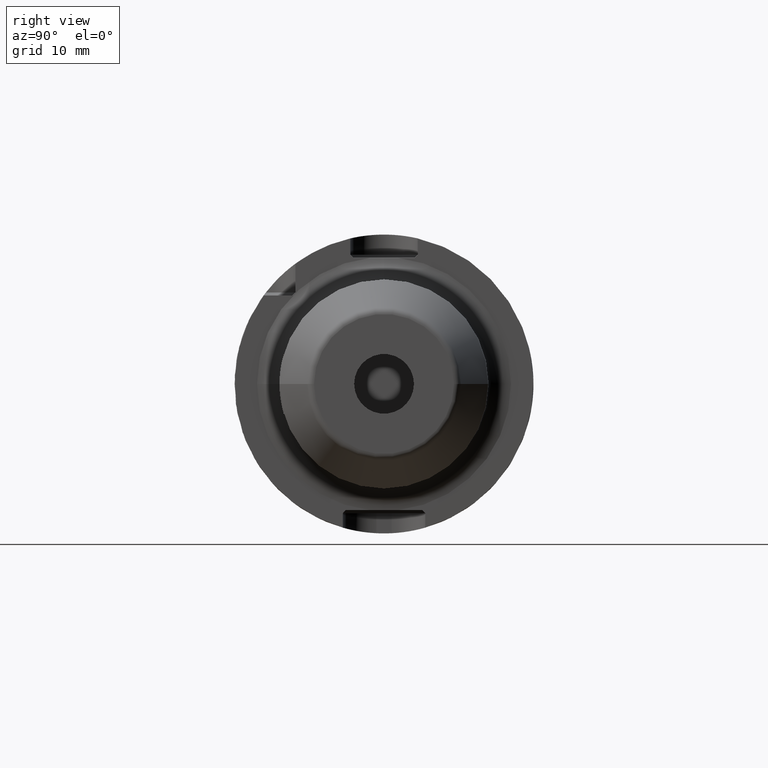
[diagram: clean part render]
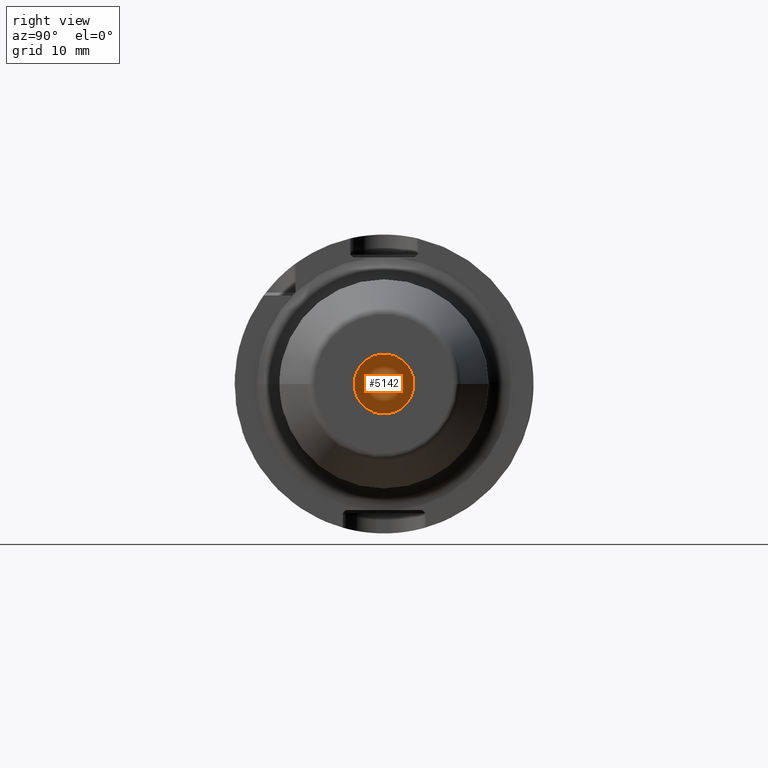
[diagram: same view with one face highlighted and labeled with its STEP entity id]
A machine part, right view. The second image highlights one B-rep face of the part: STEP entity #5142.
In plain terms, the highlighted planar face has unit normal (1, 0, 0).
Its self-contained STEP definition (entity closure, byte-faithful):
#1726=CARTESIAN_POINT('',(2.1E1,0.E0,0.E0));
#1727=DIRECTION('',(-1.E0,0.E0,0.E0));
#1728=DIRECTION('',(0.E0,1.E0,0.E0));
#1729=AXIS2_PLACEMENT_3D('',#1726,#1727,#1728);
#1731=CARTESIAN_POINT('',(2.1E1,0.E0,0.E0));
#1732=DIRECTION('',(1.E0,0.E0,0.E0));
#1733=DIRECTION('',(0.E0,1.E0,0.E0));
#1734=AXIS2_PLACEMENT_3D('',#1731,#1732,#1733);
#3329=CARTESIAN_POINT('',(2.1E1,4.E0,0.E0));
#3330=CARTESIAN_POINT('',(2.1E1,-4.E0,0.E0));
#3331=VERTEX_POINT('',#3329);
#3332=VERTEX_POINT('',#3330);
#5133=CARTESIAN_POINT('',(2.1E1,0.E0,0.E0));
#5134=DIRECTION('',(1.E0,0.E0,0.E0));
#5135=DIRECTION('',(0.E0,-1.E0,0.E0));
#5136=AXIS2_PLACEMENT_3D('',#5133,#5134,#5135);
#5137=PLANE('',#5136);
#5138=ORIENTED_EDGE('',*,*,#4993,.T.);
#5139=ORIENTED_EDGE('',*,*,#5014,.F.);
#5140=EDGE_LOOP('',(#5138,#5139));
#5141=FACE_OUTER_BOUND('',#5140,.F.);
#5142=ADVANCED_FACE('',(#5141),#5137,.T.);
#1730=CIRCLE('',#1729,4.E0);
#1735=CIRCLE('',#1734,4.E0);
#4993=EDGE_CURVE('',#3331,#3332,#1730,.T.);
#5014=EDGE_CURVE('',#3331,#3332,#1735,.T.);